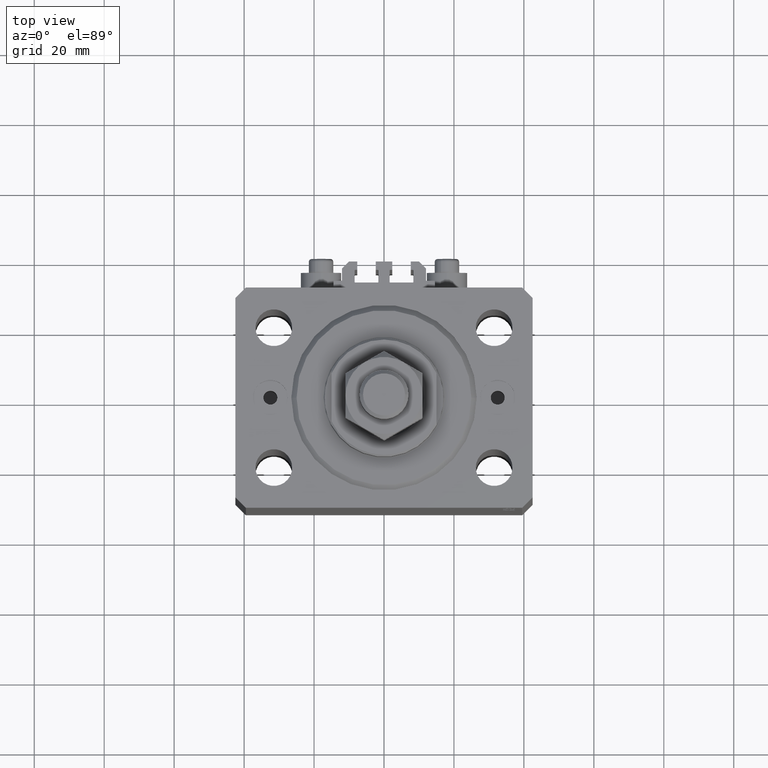
[diagram: clean part render]
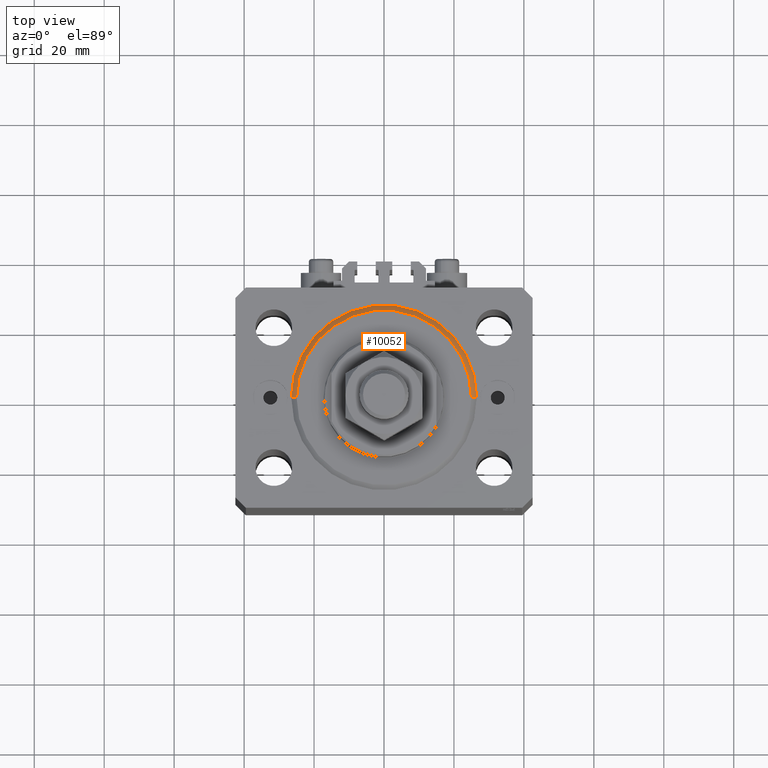
[diagram: same view with one face highlighted and labeled with its STEP entity id]
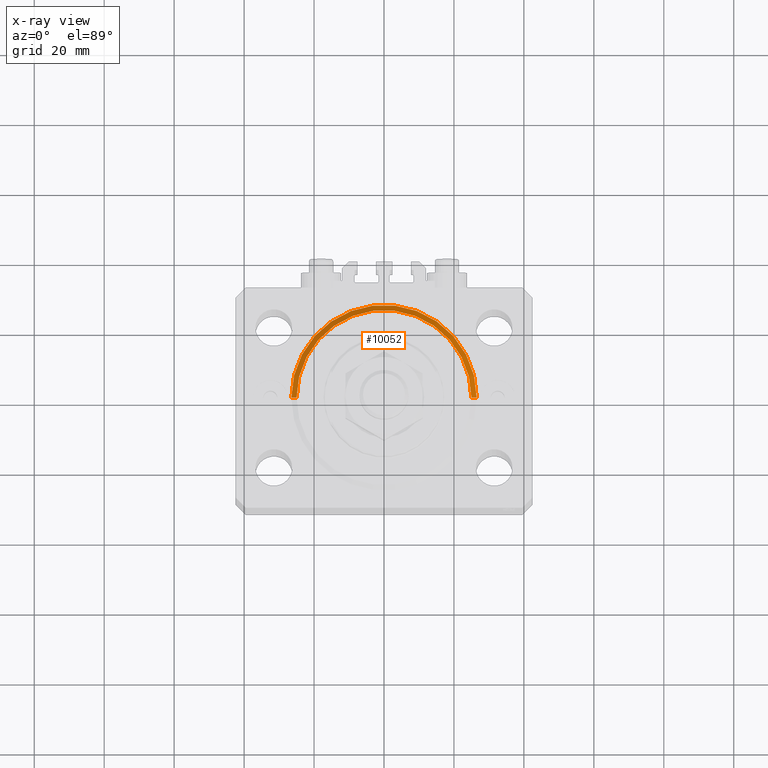
[diagram: x-ray of the same camera — body ghosted, the highlighted face saturated]
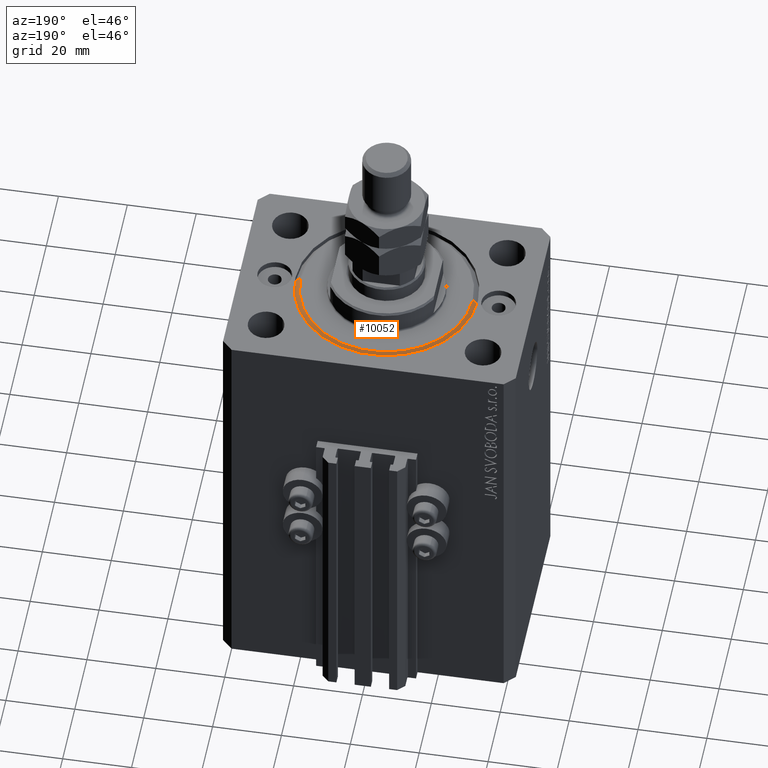
[diagram: same view with one face highlighted and labeled with its STEP entity id]
A machine part, top view. The second image highlights one B-rep face of the part: STEP entity #10052.
The next image is the same camera in x-ray: the body ghosted, the highlighted face saturated — about 0% of this face is hidden behind the body in this view.
A second angle (auxiliary view) of the same face is appended — the face is thin or edge-on in the first view.
In plain terms, the highlighted conical surface has half-angle 45 deg.
Its self-contained STEP definition (entity closure, byte-faithful):
#4623 = LINE ( 'NONE', #15770, #15296 ) ;
#5163 = ORIENTED_EDGE ( 'NONE', *, *, #32544, .F. ) ;
#6471 = EDGE_LOOP ( 'NONE', ( #38915, #28262, #5163, #22507 ) ) ;
#8937 = DIRECTION ( 'NONE',  ( 1.000000000000000000, 0.000000000000000000, 0.000000000000000000 ) ) ;
#10052 = ADVANCED_FACE ( 'NONE', ( #39240 ), #27359, .T. ) ;
#11698 = VERTEX_POINT ( 'NONE', #35168 ) ;
#12194 = CARTESIAN_POINT ( 'NONE',  ( 24.99999999999998224, 0.000000000000000000, 0.000000000000000000 ) ) ;
#13513 = EDGE_CURVE ( 'NONE', #41949, #11698, #44124, .T. ) ;
#13539 = CIRCLE ( 'NONE', #29288, 24.99999999999998224 ) ;
#15296 = VECTOR ( 'NONE', #34710, 1000.000000000000000 ) ;
#15770 = CARTESIAN_POINT ( 'NONE',  ( 26.50000000000000355, 0.000000000000000000, 1.500000000000018652 ) ) ;
#17567 = CARTESIAN_POINT ( 'NONE',  ( 0.000000000000000000, 0.000000000000000000, 1.500000000000018652 ) ) ;
#20430 = VECTOR ( 'NONE', #29331, 1000.000000000000000 ) ;
#20735 = CARTESIAN_POINT ( 'NONE',  ( -24.99999999999998224, 3.153465507804433615E-15, 0.000000000000000000 ) ) ;
#20879 = CIRCLE ( 'NONE', #32688, 26.50000000000000355 ) ;
#21076 = AXIS2_PLACEMENT_3D ( 'NONE', #17567, #43917, #31832 ) ;
#22507 = ORIENTED_EDGE ( 'NONE', *, *, #33506, .F. ) ;
#25181 = CARTESIAN_POINT ( 'NONE',  ( 0.000000000000000000, 0.000000000000000000, 1.500000000000018652 ) ) ;
#25468 = EDGE_CURVE ( 'NONE', #41949, #34854, #13539, .T. ) ;
#27359 = CONICAL_SURFACE ( 'NONE', #21076, 26.50000000000000355, 0.7853981633974495002 ) ;
#28262 = ORIENTED_EDGE ( 'NONE', *, *, #13513, .T. ) ;
#29086 = VERTEX_POINT ( 'NONE', #45551 ) ;
#29288 = AXIS2_PLACEMENT_3D ( 'NONE', #46661, #32343, #8937 ) ;
#29331 = DIRECTION ( 'NONE',  ( -0.7071067811865483499, 8.659560562354942719E-17, 0.7071067811865466846 ) ) ;
#31832 = DIRECTION ( 'NONE',  ( 1.000000000000000000, 0.000000000000000000, 0.000000000000000000 ) ) ;
#32343 = DIRECTION ( 'NONE',  ( -0.000000000000000000, -0.000000000000000000, -1.000000000000000000 ) ) ;
#32544 = EDGE_CURVE ( 'NONE', #29086, #11698, #20879, .T. ) ;
#32688 = AXIS2_PLACEMENT_3D ( 'NONE', #25181, #43920, #39975 ) ;
#33254 = CARTESIAN_POINT ( 'NONE',  ( -26.50000000000000355, 3.245314017740486554E-15, 1.500000000000018652 ) ) ;
#33506 = EDGE_CURVE ( 'NONE', #34854, #29086, #4623, .T. ) ;
#34710 = DIRECTION ( 'NONE',  ( 0.7071067811865483499, 0.000000000000000000, 0.7071067811865466846 ) ) ;
#34854 = VERTEX_POINT ( 'NONE', #12194 ) ;
#35168 = CARTESIAN_POINT ( 'NONE',  ( -26.50000000000000355, 0.000000000000000000, 1.500000000000018652 ) ) ;
#38915 = ORIENTED_EDGE ( 'NONE', *, *, #25468, .F. ) ;
#39240 = FACE_OUTER_BOUND ( 'NONE', #6471, .T. ) ;
#39975 = DIRECTION ( 'NONE',  ( 1.000000000000000000, 0.000000000000000000, 0.000000000000000000 ) ) ;
#41949 = VERTEX_POINT ( 'NONE', #20735 ) ;
#43917 = DIRECTION ( 'NONE',  ( -0.000000000000000000, -0.000000000000000000, 1.000000000000000000 ) ) ;
#43920 = DIRECTION ( 'NONE',  ( -0.000000000000000000, -0.000000000000000000, 1.000000000000000000 ) ) ;
#44124 = LINE ( 'NONE', #33254, #20430 ) ;
#45551 = CARTESIAN_POINT ( 'NONE',  ( 26.50000000000000355, 3.245314017740486554E-15, 1.500000000000018652 ) ) ;
#46661 = CARTESIAN_POINT ( 'NONE',  ( 0.000000000000000000, 0.000000000000000000, 0.000000000000000000 ) ) ;